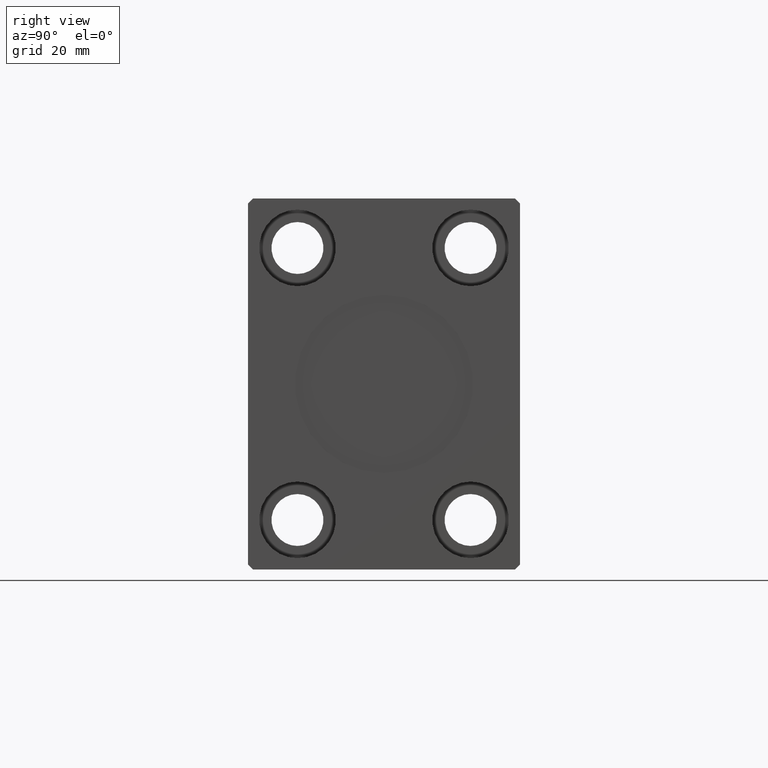
[diagram: clean part render]
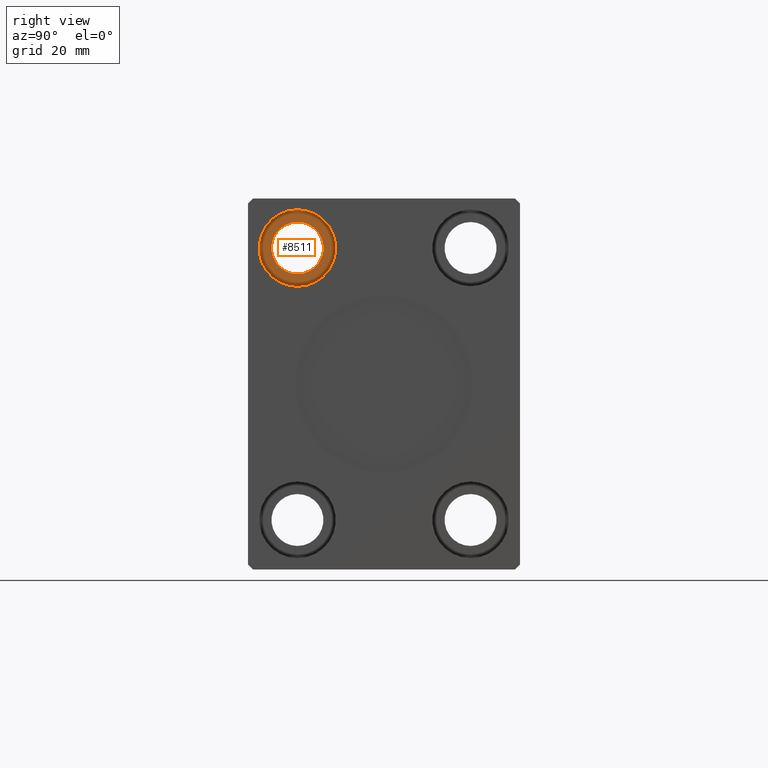
[diagram: same view with one face highlighted and labeled with its STEP entity id]
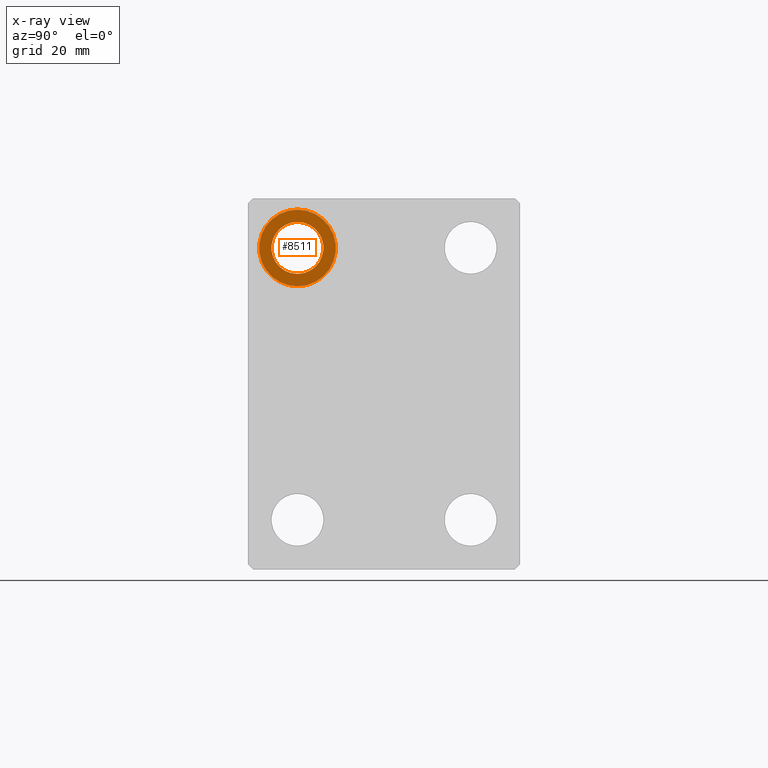
[diagram: x-ray of the same camera — body ghosted, the highlighted face saturated]
A machine part, right view. The second image highlights one B-rep face of the part: STEP entity #8511.
The next image is the same camera in x-ray: the body ghosted, the highlighted face saturated — about 0% of this face is hidden behind the body in this view.
In plain terms, the highlighted planar face has unit normal (1, 0, -0).
Its self-contained STEP definition (entity closure, byte-faithful):
#94 = AXIS2_PLACEMENT_3D ( 'NONE', #31919, #25692, #2408 ) ;
#2039 = EDGE_CURVE ( 'NONE', #8085, #39555, #31731, .T. ) ;
#2408 = DIRECTION ( 'NONE',  ( 0.000000000000000000, 0.000000000000000000, 1.000000000000000000 ) ) ;
#3101 = CARTESIAN_POINT ( 'NONE',  ( 104.6700000000000017, -17.50000000000000000, 27.50000000000000000 ) ) ;
#3727 = ORIENTED_EDGE ( 'NONE', *, *, #22579, .F. ) ;
#6870 = DIRECTION ( 'NONE',  ( 0.000000000000000000, 0.000000000000000000, 1.000000000000000000 ) ) ;
#7196 = DIRECTION ( 'NONE',  ( 1.000000000000000000, 0.000000000000000000, 0.000000000000000000 ) ) ;
#8085 = VERTEX_POINT ( 'NONE', #10865 ) ;
#8179 = ORIENTED_EDGE ( 'NONE', *, *, #31448, .F. ) ;
#8419 = FACE_BOUND ( 'NONE', #11601, .T. ) ;
#8511 = ADVANCED_FACE ( 'NONE', ( #8419, #41377 ), #21577, .T. ) ;
#8820 = DIRECTION ( 'NONE',  ( 1.000000000000000000, 0.000000000000000000, 0.000000000000000000 ) ) ;
#9187 = ORIENTED_EDGE ( 'NONE', *, *, #2039, .F. ) ;
#10416 = AXIS2_PLACEMENT_3D ( 'NONE', #3101, #7196, #23155 ) ;
#10546 = DIRECTION ( 'NONE',  ( -1.000000000000000000, -0.000000000000000000, -0.000000000000000000 ) ) ;
#10851 = CIRCLE ( 'NONE', #30782, 5.250000000000000888 ) ;
#10865 = CARTESIAN_POINT ( 'NONE',  ( 104.6700000000000017, -17.50000000000000000, 35.25000000000000000 ) ) ;
#11136 = AXIS2_PLACEMENT_3D ( 'NONE', #27804, #40953, #11858 ) ;
#11601 = EDGE_LOOP ( 'NONE', ( #31439, #3727 ) ) ;
#11858 = DIRECTION ( 'NONE',  ( 0.000000000000000000, 0.000000000000000000, 1.000000000000000000 ) ) ;
#15914 = VERTEX_POINT ( 'NONE', #39223 ) ;
#18947 = DIRECTION ( 'NONE',  ( 0.000000000000000000, 0.000000000000000000, -1.000000000000000000 ) ) ;
#21577 = PLANE ( 'NONE',  #11136 ) ;
#22579 = EDGE_CURVE ( 'NONE', #34562, #15914, #10851, .T. ) ;
#23155 = DIRECTION ( 'NONE',  ( 0.000000000000000000, 0.000000000000000000, -1.000000000000000000 ) ) ;
#23267 = EDGE_LOOP ( 'NONE', ( #8179, #9187 ) ) ;
#25692 = DIRECTION ( 'NONE',  ( -1.000000000000000000, -0.000000000000000000, -0.000000000000000000 ) ) ;
#27804 = CARTESIAN_POINT ( 'NONE',  ( 104.6700000000000017, -17.50000000000000000, 27.50000000000000000 ) ) ;
#29704 = CARTESIAN_POINT ( 'NONE',  ( 104.6700000000000017, -17.50000000000000000, 27.50000000000000000 ) ) ;
#30782 = AXIS2_PLACEMENT_3D ( 'NONE', #35528, #8820, #18947 ) ;
#30890 = CARTESIAN_POINT ( 'NONE',  ( 104.6700000000000017, -17.50000000000000000, 19.74999999999999645 ) ) ;
#31439 = ORIENTED_EDGE ( 'NONE', *, *, #38171, .F. ) ;
#31448 = EDGE_CURVE ( 'NONE', #39555, #8085, #35706, .T. ) ;
#31731 = CIRCLE ( 'NONE', #94, 7.750000000000003553 ) ;
#31919 = CARTESIAN_POINT ( 'NONE',  ( 104.6700000000000017, -17.50000000000000000, 27.50000000000000000 ) ) ;
#33094 = CIRCLE ( 'NONE', #10416, 5.250000000000000888 ) ;
#33656 = AXIS2_PLACEMENT_3D ( 'NONE', #29704, #10546, #6870 ) ;
#34562 = VERTEX_POINT ( 'NONE', #37447 ) ;
#35528 = CARTESIAN_POINT ( 'NONE',  ( 104.6700000000000017, -17.50000000000000000, 27.50000000000000000 ) ) ;
#35706 = CIRCLE ( 'NONE', #33656, 7.750000000000003553 ) ;
#37447 = CARTESIAN_POINT ( 'NONE',  ( 104.6700000000000017, -17.50000000000000000, 22.25000000000000000 ) ) ;
#38171 = EDGE_CURVE ( 'NONE', #15914, #34562, #33094, .T. ) ;
#39223 = CARTESIAN_POINT ( 'NONE',  ( 104.6700000000000017, -17.50000000000000000, 32.75000000000000000 ) ) ;
#39555 = VERTEX_POINT ( 'NONE', #30890 ) ;
#40953 = DIRECTION ( 'NONE',  ( 1.000000000000000000, 0.000000000000000000, -0.000000000000000000 ) ) ;
#41377 = FACE_OUTER_BOUND ( 'NONE', #23267, .T. ) ;